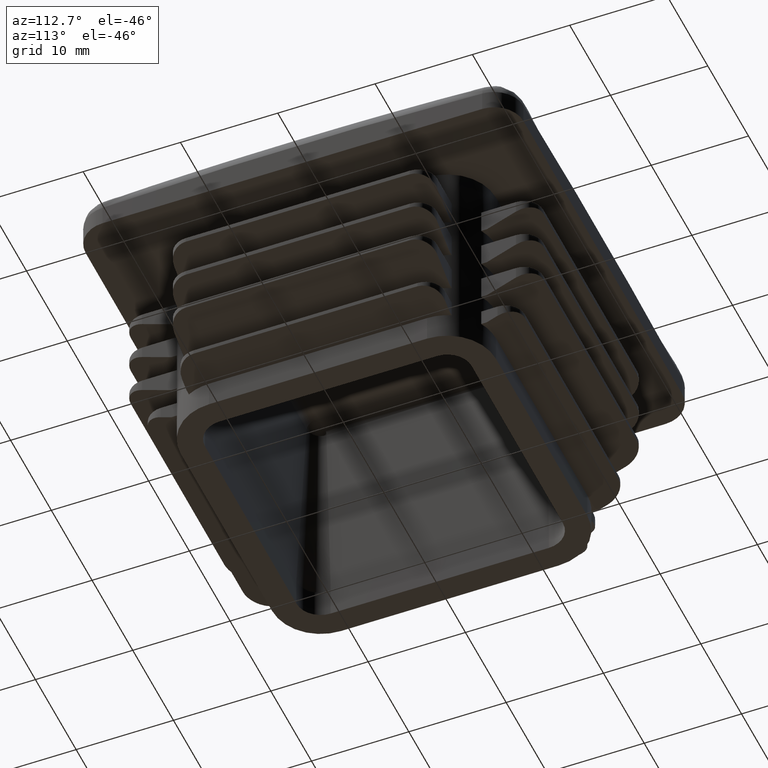
[diagram: clean part render]
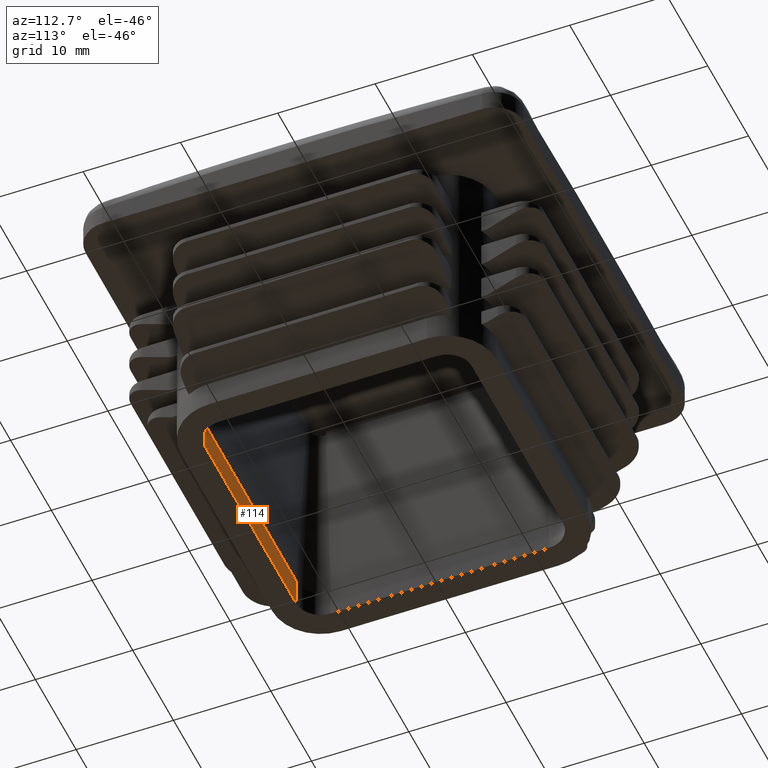
[diagram: same view with one face highlighted and labeled with its STEP entity id]
A machine part, auxiliary view. The second image highlights one B-rep face of the part: STEP entity #114.
In plain terms, the highlighted planar face has unit normal (0, 1, 0).
Its self-contained STEP definition (entity closure, byte-faithful):
#114 = ADVANCED_FACE( '', ( #448 ), #449, .T. );
#448 = FACE_OUTER_BOUND( '', #2233, .T. );
#449 = PLANE( '', #2234 );
#2233 = EDGE_LOOP( '', ( #3917, #3918, #3919, #3920 ) );
#2234 = AXIS2_PLACEMENT_3D( '', #3921, #3922, #3923 );
#3917 = ORIENTED_EDGE( '', *, *, #6021, .F. );
#3918 = ORIENTED_EDGE( '', *, *, #6036, .F. );
#3919 = ORIENTED_EDGE( '', *, *, #6037, .T. );
#3920 = ORIENTED_EDGE( '', *, *, #6038, .T. );
#3921 = CARTESIAN_POINT( '', ( -11.2000000000000, -13.7000000000000, 3.00000000000000 ) );
#3922 = DIRECTION( '', ( 0.000000000000000, 1.00000000000000, 0.000000000000000 ) );
#3923 = DIRECTION( '', ( -1.00000000000000, 0.000000000000000, 0.000000000000000 ) );
#6021 = EDGE_CURVE( '', #6942, #6944, #6945, .T. );
#6036 = EDGE_CURVE( '', #6970, #6942, #6972, .T. );
#6037 = EDGE_CURVE( '', #6970, #6973, #6974, .T. );
#6038 = EDGE_CURVE( '', #6973, #6944, #6975, .T. );
#6942 = VERTEX_POINT( '', #9387 );
#6944 = VERTEX_POINT( '', #9389 );
#6945 = LINE( '', #9390, #9391 );
#6970 = VERTEX_POINT( '', #9423 );
#6972 = LINE( '', #9425, #9426 );
#6973 = VERTEX_POINT( '', #9427 );
#6974 = LINE( '', #9428, #9429 );
#6975 = LINE( '', #9430, #9431 );
#9387 = CARTESIAN_POINT( '', ( -11.2000000000000, -13.7000000000000, 3.46944695195361E-015 ) );
#9389 = CARTESIAN_POINT( '', ( 11.2000000000000, -13.7000000000000, 3.46944695195361E-015 ) );
#9390 = CARTESIAN_POINT( '', ( -11.2000000000000, -13.7000000000000, 3.46944695195361E-015 ) );
#9391 = VECTOR( '', #11233, 1000.00000000000 );
#9423 = CARTESIAN_POINT( '', ( -11.2000000000000, -13.7000000000000, 3.00000000000000 ) );
#9425 = CARTESIAN_POINT( '', ( -11.2000000000000, -13.7000000000000, 3.00000000000000 ) );
#9426 = VECTOR( '', #11262, 1000.00000000000 );
#9427 = CARTESIAN_POINT( '', ( 11.2000000000000, -13.7000000000000, 3.00000000000000 ) );
#9428 = CARTESIAN_POINT( '', ( -11.2000000000000, -13.7000000000000, 3.00000000000000 ) );
#9429 = VECTOR( '', #11263, 1000.00000000000 );
#9430 = CARTESIAN_POINT( '', ( 11.2000000000000, -13.7000000000000, 3.00000000000000 ) );
#9431 = VECTOR( '', #11264, 1000.00000000000 );
#11233 = DIRECTION( '', ( 1.00000000000000, 0.000000000000000, 0.000000000000000 ) );
#11262 = DIRECTION( '', ( 0.000000000000000, 0.000000000000000, -1.00000000000000 ) );
#11263 = DIRECTION( '', ( 1.00000000000000, 0.000000000000000, 0.000000000000000 ) );
#11264 = DIRECTION( '', ( 0.000000000000000, 0.000000000000000, -1.00000000000000 ) );